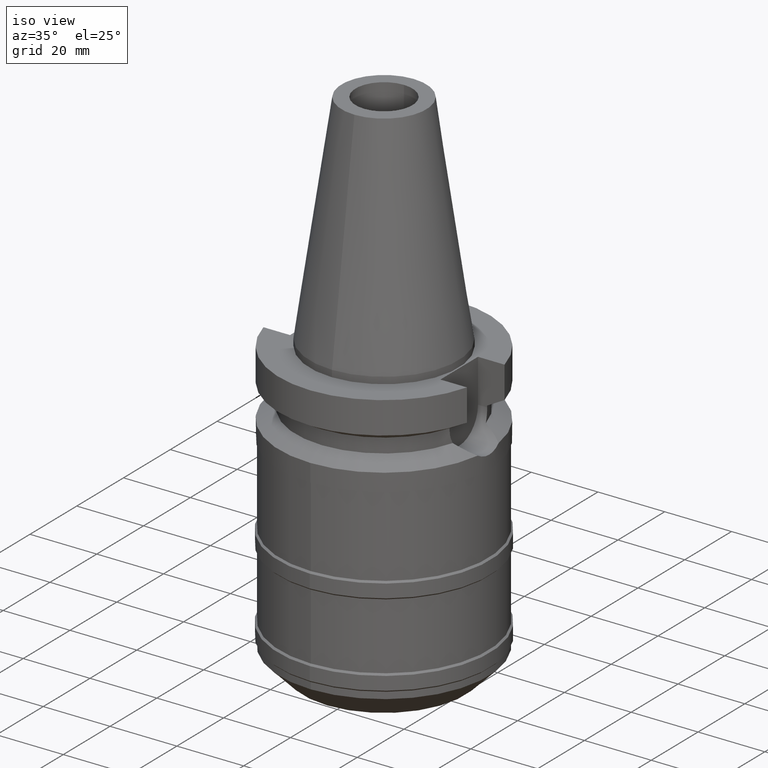
[diagram: clean part render]
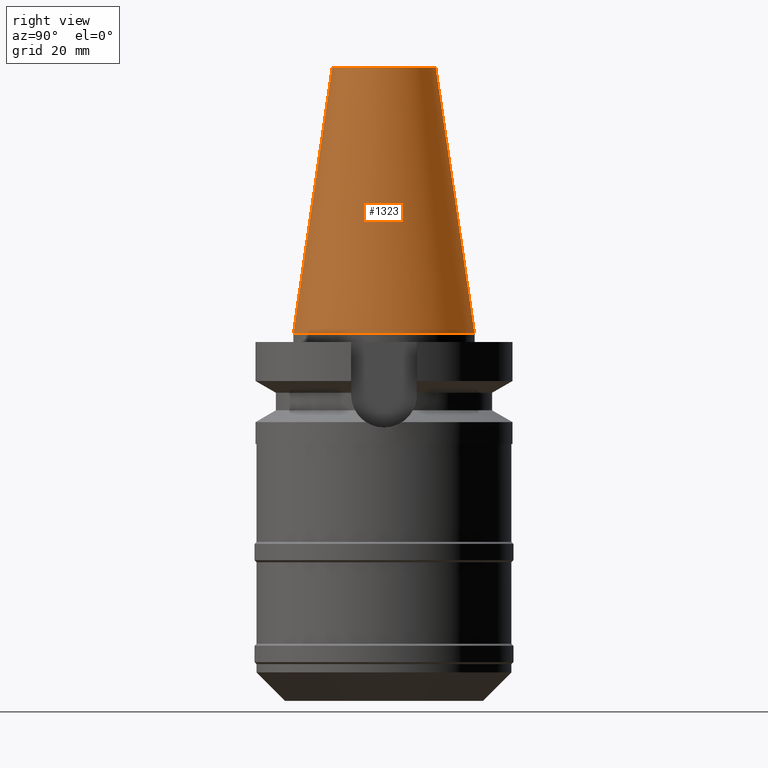
[diagram: tour spotlight — one face highlighted and labeled with its STEP entity id]
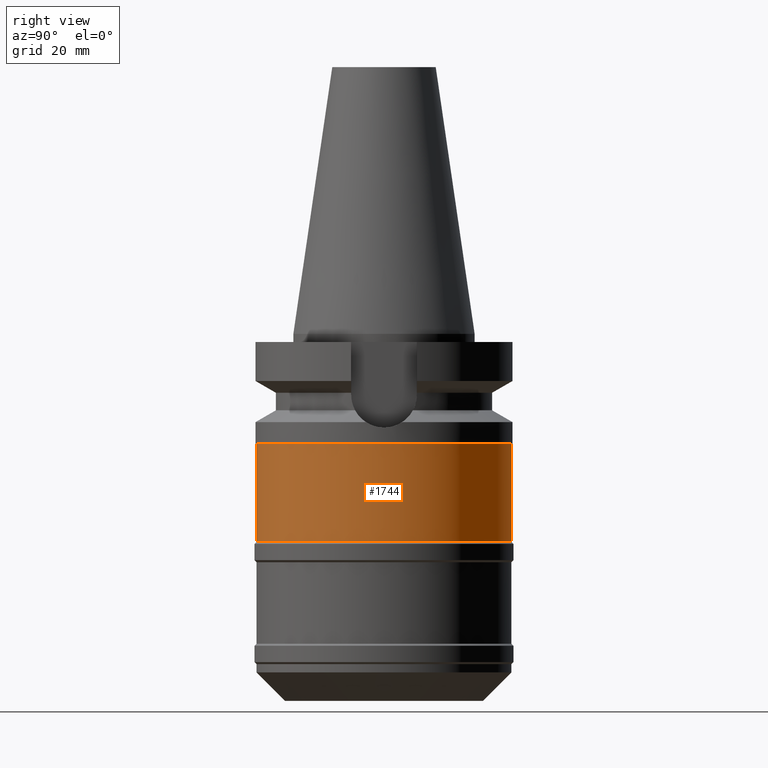
[diagram: tour spotlight — one face highlighted and labeled with its STEP entity id]
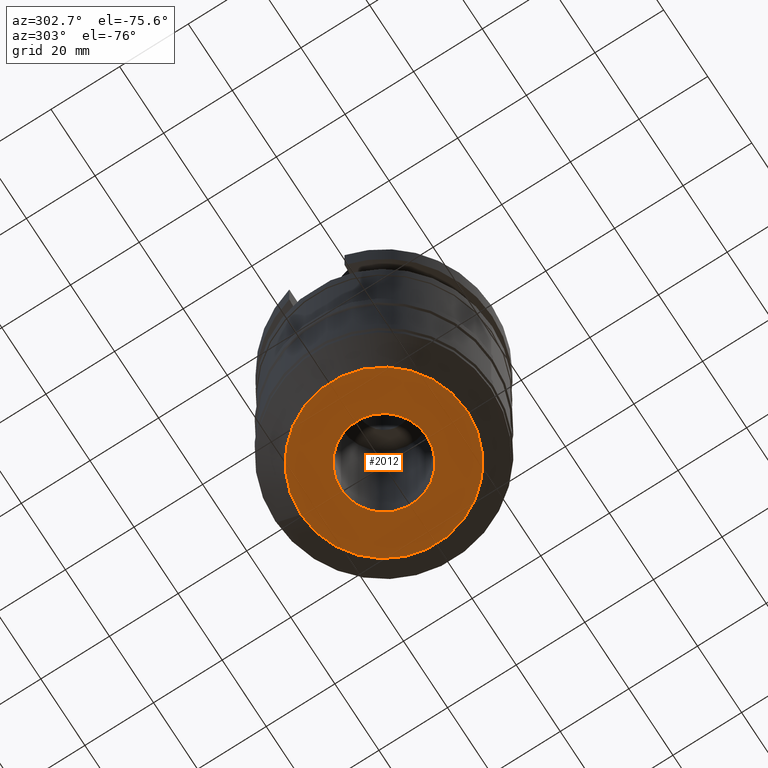
[diagram: tour spotlight — one face highlighted and labeled with its STEP entity id]
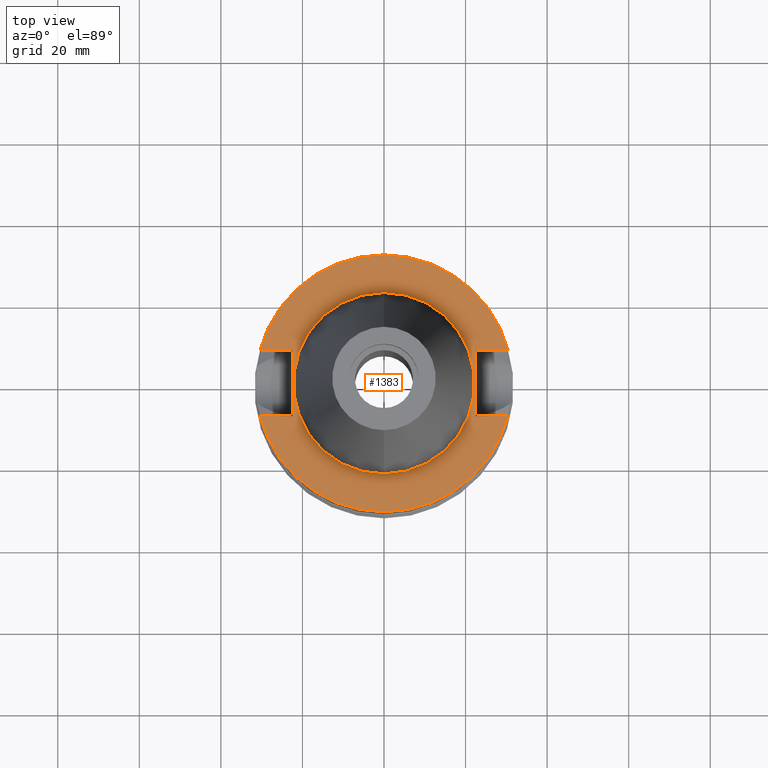
[diagram: tour spotlight — one face highlighted and labeled with its STEP entity id]
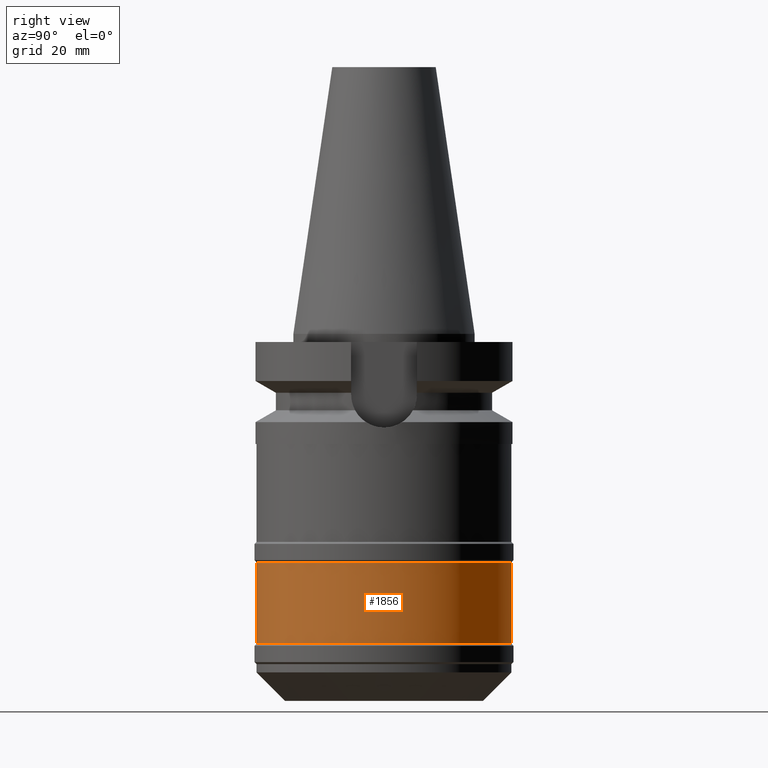
[diagram: tour spotlight — one face highlighted and labeled with its STEP entity id]
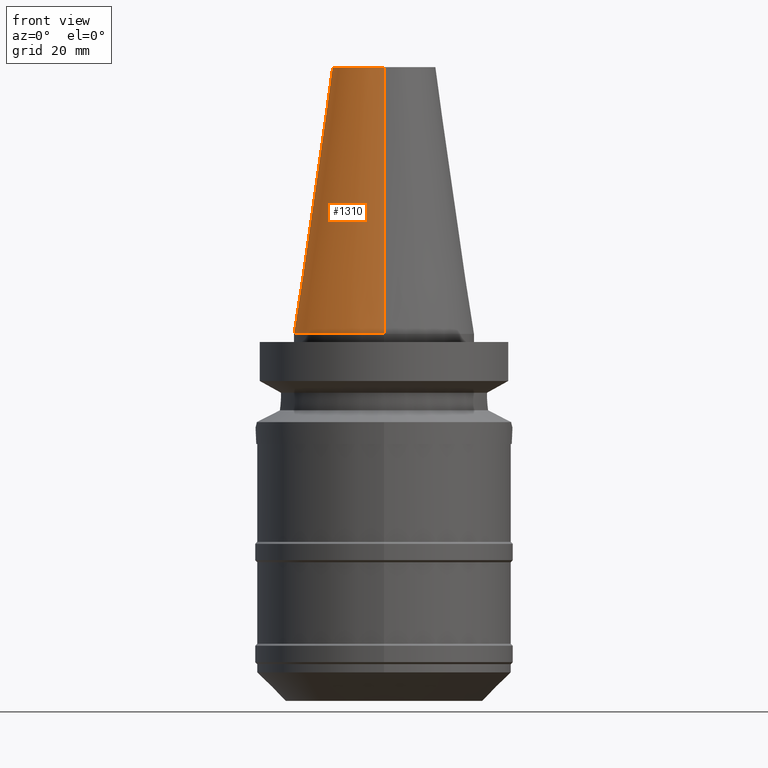
[diagram: tour spotlight — one face highlighted and labeled with its STEP entity id]
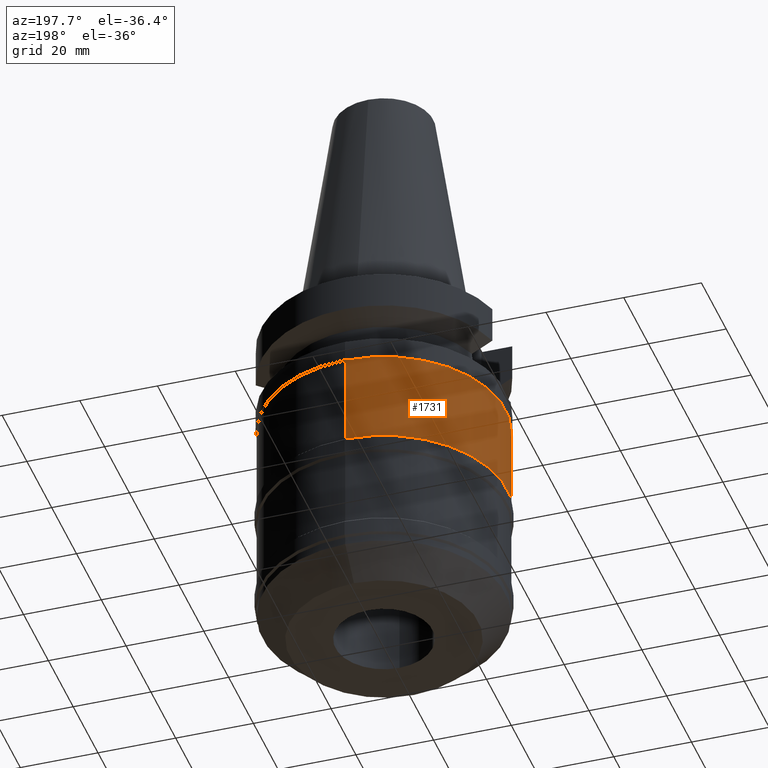
[diagram: tour spotlight — one face highlighted and labeled with its STEP entity id]
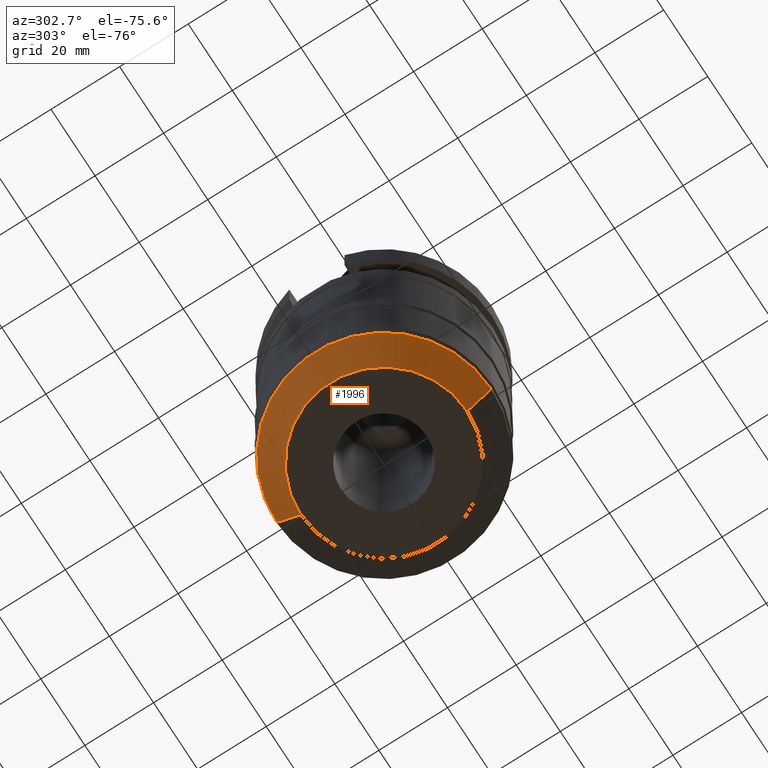
[diagram: tour spotlight — one face highlighted and labeled with its STEP entity id]
A machine part: a face-by-face anatomy tour. The part has 56 B-rep faces; the first image is the clean iso view, then the 8 largest visible faces are spotlighted one at a time (largest first), each with its STEP entity span.

Face 1 — right view, entity #1323. In plain terms, the highlighted conical surface has half-angle 8.297 deg.
Definition (entity closure, byte-faithful):
#26=CARTESIAN_POINT('',(0.E0,1.625106302469E-14,6.54E1));
#27=DIRECTION('',(0.E0,0.E0,-1.E0));
#28=DIRECTION('',(0.E0,1.E0,0.E0));
#29=AXIS2_PLACEMENT_3D('',#26,#27,#28);
#50=DIRECTION('',(0.E0,-1.443043893540E-1,-9.895333461856E-1));
#51=VECTOR('',#50,6.609175956738E1);
#52=CARTESIAN_POINT('',(0.E0,-1.268766899430E1,6.54E1));
#53=LINE('',#52,#51);
#65=DIRECTION('',(0.E0,1.443043893540E-1,-9.895333461856E-1));
#66=VECTOR('',#65,6.609175956738E1);
#67=CARTESIAN_POINT('',(0.E0,1.268766899430E1,6.54E1));
#68=LINE('',#67,#66);
#72=CARTESIAN_POINT('',(0.E0,1.625106302469E-14,2.842170943040E-14));
#73=DIRECTION('',(0.E0,0.E0,-1.E0));
#74=DIRECTION('',(0.E0,1.E0,0.E0));
#75=AXIS2_PLACEMENT_3D('',#72,#73,#74);
#1113=CARTESIAN_POINT('',(0.E0,-1.268766899430E1,6.54E1));
#1114=CARTESIAN_POINT('',(0.E0,1.268766899430E1,6.54E1));
#1115=VERTEX_POINT('',#1113);
#1116=VERTEX_POINT('',#1114);
#1266=CARTESIAN_POINT('',(0.E0,2.2225E1,6.394884621841E-14));
#1267=VERTEX_POINT('',#1266);
#1268=CARTESIAN_POINT('',(0.E0,-2.2225E1,6.394884621841E-14));
#1269=VERTEX_POINT('',#1268);
#1311=CARTESIAN_POINT('',(0.E0,1.625106302469E-14,3.27E1));
#1312=DIRECTION('',(0.E0,0.E0,-1.E0));
#1313=DIRECTION('',(0.E0,-1.E0,0.E0));
#1314=AXIS2_PLACEMENT_3D('',#1311,#1312,#1313);
#1315=CONICAL_SURFACE('',#1314,1.745633449715E1,8.297E0);
#1316=ORIENTED_EDGE('',*,*,#1301,.T.);
#1318=ORIENTED_EDGE('',*,*,#1317,.T.);
#1319=ORIENTED_EDGE('',*,*,#1304,.F.);
#1320=ORIENTED_EDGE('',*,*,#1285,.F.);
#1321=EDGE_LOOP('',(#1316,#1318,#1319,#1320));
#1322=FACE_OUTER_BOUND('',#1321,.F.);
#30=CIRCLE('',#29,1.268766899430E1);
#76=CIRCLE('',#75,2.2225E1);
#1285=EDGE_CURVE('',#1116,#1115,#30,.T.);
#1301=EDGE_CURVE('',#1116,#1267,#68,.T.);
#1304=EDGE_CURVE('',#1115,#1269,#53,.T.);
#1317=EDGE_CURVE('',#1267,#1269,#76,.T.);
#1323=ADVANCED_FACE('',(#1322),#1315,.T.);

Face 2 — right view, entity #1744. In plain terms, the highlighted cylindrical surface (partial cylindrical patch) has radius 31.25 mm, axis along (0, 0, -1).
Definition (entity closure, byte-faithful):
#653=CARTESIAN_POINT('',(0.E0,2.120720862083E-14,-2.7E1));
#654=DIRECTION('',(0.E0,0.E0,-1.E0));
#655=DIRECTION('',(0.E0,1.E0,0.E0));
#656=AXIS2_PLACEMENT_3D('',#653,#654,#655);
#661=DIRECTION('',(0.E0,0.E0,-1.E0));
#662=VECTOR('',#661,2.4E1);
#663=CARTESIAN_POINT('',(0.E0,-3.125E1,-2.7E1));
#664=LINE('',#663,#662);
#668=DIRECTION('',(0.E0,0.E0,-1.E0));
#669=VECTOR('',#668,2.4E1);
#670=CARTESIAN_POINT('',(0.E0,3.125E1,-2.7E1));
#671=LINE('',#670,#669);
#690=CARTESIAN_POINT('',(0.E0,0.E0,-5.1E1));
#691=DIRECTION('',(0.E0,0.E0,1.E0));
#692=DIRECTION('',(0.E0,-1.E0,0.E0));
#693=AXIS2_PLACEMENT_3D('',#690,#691,#692);
#1181=CARTESIAN_POINT('',(0.E0,3.125E1,-5.1E1));
#1182=VERTEX_POINT('',#1181);
#1183=CARTESIAN_POINT('',(0.E0,-3.125E1,-5.1E1));
#1184=VERTEX_POINT('',#1183);
#1185=CARTESIAN_POINT('',(0.E0,3.125E1,-2.7E1));
#1186=VERTEX_POINT('',#1185);
#1187=CARTESIAN_POINT('',(0.E0,-3.125E1,-2.7E1));
#1188=VERTEX_POINT('',#1187);
#1732=CARTESIAN_POINT('',(0.E0,2.120720862083E-14,7.317E1));
#1733=DIRECTION('',(0.E0,0.E0,-1.E0));
#1734=DIRECTION('',(0.E0,-1.E0,0.E0));
#1735=AXIS2_PLACEMENT_3D('',#1732,#1733,#1734);
#1736=CYLINDRICAL_SURFACE('',#1735,3.125E1);
#1737=ORIENTED_EDGE('',*,*,#1722,.T.);
#1739=ORIENTED_EDGE('',*,*,#1738,.F.);
#1740=ORIENTED_EDGE('',*,*,#1725,.F.);
#1741=ORIENTED_EDGE('',*,*,#1712,.F.);
#1742=EDGE_LOOP('',(#1737,#1739,#1740,#1741));
#1743=FACE_OUTER_BOUND('',#1742,.F.);
#657=CIRCLE('',#656,3.125E1);
#694=CIRCLE('',#693,3.125E1);
#1712=EDGE_CURVE('',#1186,#1188,#657,.T.);
#1722=EDGE_CURVE('',#1186,#1182,#671,.T.);
#1725=EDGE_CURVE('',#1188,#1184,#664,.T.);
#1738=EDGE_CURVE('',#1184,#1182,#694,.T.);
#1744=ADVANCED_FACE('',(#1743),#1736,.T.);

Face 3 — auxiliary view, entity #2012. In plain terms, the highlighted planar face has unit normal (0, 0, -1).
Definition (entity closure, byte-faithful):
#945=CARTESIAN_POINT('',(0.E0,0.E0,-9.E1));
#946=DIRECTION('',(0.E0,0.E0,1.E0));
#947=DIRECTION('',(0.E0,-1.E0,0.E0));
#948=AXIS2_PLACEMENT_3D('',#945,#946,#947);
#953=CARTESIAN_POINT('',(0.E0,0.E0,-9.E1));
#954=DIRECTION('',(0.E0,0.E0,1.E0));
#955=DIRECTION('',(0.E0,1.E0,0.E0));
#956=AXIS2_PLACEMENT_3D('',#953,#954,#955);
#961=CARTESIAN_POINT('',(0.E0,2.120720862083E-14,-9.E1));
#962=DIRECTION('',(0.E0,0.E0,-1.E0));
#963=DIRECTION('',(0.E0,-1.E0,0.E0));
#964=AXIS2_PLACEMENT_3D('',#961,#962,#963);
#969=CARTESIAN_POINT('',(0.E0,2.120720862083E-14,-9.E1));
#970=DIRECTION('',(0.E0,0.E0,-1.E0));
#971=DIRECTION('',(0.E0,1.E0,0.E0));
#972=AXIS2_PLACEMENT_3D('',#969,#970,#971);
#1141=CARTESIAN_POINT('',(0.E0,1.25E1,-9.E1));
#1142=VERTEX_POINT('',#1141);
#1143=CARTESIAN_POINT('',(0.E0,-1.25E1,-9.E1));
#1144=VERTEX_POINT('',#1143);
#1145=CARTESIAN_POINT('',(0.E0,-2.425E1,-9.E1));
#1146=CARTESIAN_POINT('',(0.E0,2.425E1,-9.E1));
#1147=VERTEX_POINT('',#1145);
#1148=VERTEX_POINT('',#1146);
#1997=CARTESIAN_POINT('',(0.E0,0.E0,-9.E1));
#1998=DIRECTION('',(0.E0,0.E0,-1.E0));
#1999=DIRECTION('',(0.E0,-1.E0,0.E0));
#2000=AXIS2_PLACEMENT_3D('',#1997,#1998,#1999);
#2001=PLANE('',#2000);
#2002=ORIENTED_EDGE('',*,*,#1976,.T.);
#2003=ORIENTED_EDGE('',*,*,#1992,.T.);
#2004=EDGE_LOOP('',(#2002,#2003));
#2005=FACE_OUTER_BOUND('',#2004,.F.);
#2007=ORIENTED_EDGE('',*,*,#2006,.T.);
#2009=ORIENTED_EDGE('',*,*,#2008,.T.);
#2010=EDGE_LOOP('',(#2007,#2009));
#2011=FACE_BOUND('',#2010,.F.);
#949=CIRCLE('',#948,2.425E1);
#957=CIRCLE('',#956,2.425E1);
#965=CIRCLE('',#964,1.25E1);
#973=CIRCLE('',#972,1.25E1);
#1976=EDGE_CURVE('',#1147,#1148,#949,.T.);
#1992=EDGE_CURVE('',#1148,#1147,#957,.T.);
#2006=EDGE_CURVE('',#1144,#1142,#965,.T.);
#2008=EDGE_CURVE('',#1142,#1144,#973,.T.);
#2012=ADVANCED_FACE('',(#2005,#2011),#2001,.T.);

Face 4 — top view, entity #1383. In plain terms, the highlighted planar face has unit normal (0, 0, -1).
Definition (entity closure, byte-faithful):
#94=DIRECTION('',(0.E0,1.E0,0.E0));
#95=VECTOR('',#94,1.61E1);
#96=CARTESIAN_POINT('',(-2.25E1,-8.05E0,-2.E0));
#97=LINE('',#96,#95);
#101=DIRECTION('',(-1.E0,-3.550916904668E-14,0.E0));
#102=VECTOR('',#101,7.954022722788E0);
#103=CARTESIAN_POINT('',(-2.25E1,8.05E0,-2.E0));
#104=LINE('',#103,#102);
#108=CARTESIAN_POINT('',(0.E0,2.120720862083E-14,-2.E0));
#109=DIRECTION('',(0.E0,0.E0,-1.E0));
#110=DIRECTION('',(-9.667943721520E-1,2.555555555556E-1,0.E0));
#111=AXIS2_PLACEMENT_3D('',#108,#109,#110);
#116=CARTESIAN_POINT('',(0.E0,2.120720862083E-14,-2.E0));
#117=DIRECTION('',(0.E0,0.E0,-1.E0));
#118=DIRECTION('',(0.E0,1.E0,0.E0));
#119=AXIS2_PLACEMENT_3D('',#116,#117,#118);
#124=DIRECTION('',(0.E0,-1.E0,0.E0));
#125=VECTOR('',#124,1.61E1);
#126=CARTESIAN_POINT('',(2.25E1,8.05E0,-2.E0));
#127=LINE('',#126,#125);
#131=DIRECTION('',(1.E0,3.573249715390E-14,0.E0));
#132=VECTOR('',#131,7.954022722788E0);
#133=CARTESIAN_POINT('',(2.25E1,-8.05E0,-2.E0));
#134=LINE('',#133,#132);
#138=CARTESIAN_POINT('',(0.E0,2.120720862083E-14,-2.E0));
#139=DIRECTION('',(0.E0,0.E0,-1.E0));
#140=DIRECTION('',(9.667943721520E-1,-2.555555555556E-1,0.E0));
#141=AXIS2_PLACEMENT_3D('',#138,#139,#140);
#146=CARTESIAN_POINT('',(0.E0,2.120720862083E-14,-2.E0));
#147=DIRECTION('',(0.E0,0.E0,-1.E0));
#148=DIRECTION('',(0.E0,-1.E0,0.E0));
#149=AXIS2_PLACEMENT_3D('',#146,#147,#148);
#154=CARTESIAN_POINT('',(0.E0,2.120720862083E-14,-2.E0));
#155=DIRECTION('',(0.E0,0.E0,1.E0));
#156=DIRECTION('',(0.E0,-1.E0,0.E0));
#157=AXIS2_PLACEMENT_3D('',#154,#155,#156);
#162=CARTESIAN_POINT('',(0.E0,2.120720862083E-14,-2.E0));
#163=DIRECTION('',(0.E0,0.E0,1.E0));
#164=DIRECTION('',(0.E0,1.E0,0.E0));
#165=AXIS2_PLACEMENT_3D('',#162,#163,#164);
#200=DIRECTION('',(-1.E0,3.550916904668E-14,0.E0));
#201=VECTOR('',#200,7.954022722788E0);
#202=CARTESIAN_POINT('',(-2.25E1,-8.05E0,-2.E0));
#203=LINE('',#202,#201);
#337=DIRECTION('',(1.E0,-3.506251283226E-14,0.E0));
#338=VECTOR('',#337,7.954022722788E0);
#339=CARTESIAN_POINT('',(2.25E1,8.05E0,-2.E0));
#340=LINE('',#339,#338);
#1240=CARTESIAN_POINT('',(-2.25E1,-8.05E0,-2.E0));
#1241=VERTEX_POINT('',#1240);
#1242=CARTESIAN_POINT('',(-3.045402272279E1,-8.05E0,-2.E0));
#1243=VERTEX_POINT('',#1242);
#1246=CARTESIAN_POINT('',(-2.25E1,8.05E0,-2.E0));
#1247=VERTEX_POINT('',#1246);
#1248=CARTESIAN_POINT('',(-3.045402272279E1,8.05E0,-2.E0));
#1249=VERTEX_POINT('',#1248);
#1250=CARTESIAN_POINT('',(-3.046064939756E-14,3.15E1,-2.E0));
#1251=CARTESIAN_POINT('',(3.045402272279E1,8.05E0,-2.E0));
#1252=VERTEX_POINT('',#1250);
#1253=VERTEX_POINT('',#1251);
#1254=CARTESIAN_POINT('',(2.25E1,8.05E0,-2.E0));
#1255=VERTEX_POINT('',#1254);
#1256=CARTESIAN_POINT('',(2.25E1,-8.05E0,-2.E0));
#1257=VERTEX_POINT('',#1256);
#1258=CARTESIAN_POINT('',(3.045402272279E1,-8.05E0,-2.E0));
#1259=VERTEX_POINT('',#1258);
#1260=CARTESIAN_POINT('',(3.046064939756E-14,-3.15E1,-2.E0));
#1261=VERTEX_POINT('',#1260);
#1262=CARTESIAN_POINT('',(0.E0,-2.2225E1,-2.E0));
#1263=CARTESIAN_POINT('',(0.E0,2.2225E1,-2.E0));
#1264=VERTEX_POINT('',#1262);
#1265=VERTEX_POINT('',#1263);
#1352=CARTESIAN_POINT('',(0.E0,1.200153863164E-14,-2.E0));
#1353=DIRECTION('',(0.E0,0.E0,-1.E0));
#1354=DIRECTION('',(0.E0,-1.E0,0.E0));
#1355=AXIS2_PLACEMENT_3D('',#1352,#1353,#1354);
#1356=PLANE('',#1355);
#1358=ORIENTED_EDGE('',*,*,#1357,.T.);
#1360=ORIENTED_EDGE('',*,*,#1359,.T.);
#1362=ORIENTED_EDGE('',*,*,#1361,.T.);
#1364=ORIENTED_EDGE('',*,*,#1363,.T.);
#1366=ORIENTED_EDGE('',*,*,#1365,.F.);
#1368=ORIENTED_EDGE('',*,*,#1367,.T.);
#1370=ORIENTED_EDGE('',*,*,#1369,.T.);
#1372=ORIENTED_EDGE('',*,*,#1371,.T.);
#1374=ORIENTED_EDGE('',*,*,#1373,.T.);
#1376=ORIENTED_EDGE('',*,*,#1375,.F.);
#1377=EDGE_LOOP('',(#1358,#1360,#1362,#1364,#1366,#1368,#1370,#1372,#1374,
#1376));
#1378=FACE_OUTER_BOUND('',#1377,.F.);
#1379=ORIENTED_EDGE('',*,*,#1331,.T.);
#1380=ORIENTED_EDGE('',*,*,#1347,.T.);
#1381=EDGE_LOOP('',(#1379,#1380));
#1382=FACE_BOUND('',#1381,.F.);
#112=CIRCLE('',#111,3.15E1);
#120=CIRCLE('',#119,3.15E1);
#142=CIRCLE('',#141,3.15E1);
#150=CIRCLE('',#149,3.15E1);
#158=CIRCLE('',#157,2.2225E1);
#166=CIRCLE('',#165,2.2225E1);
#1331=EDGE_CURVE('',#1264,#1265,#158,.T.);
#1347=EDGE_CURVE('',#1265,#1264,#166,.T.);
#1357=EDGE_CURVE('',#1241,#1247,#97,.T.);
#1359=EDGE_CURVE('',#1247,#1249,#104,.T.);
#1361=EDGE_CURVE('',#1249,#1252,#112,.T.);
#1363=EDGE_CURVE('',#1252,#1253,#120,.T.);
#1365=EDGE_CURVE('',#1255,#1253,#340,.T.);
#1367=EDGE_CURVE('',#1255,#1257,#127,.T.);
#1369=EDGE_CURVE('',#1257,#1259,#134,.T.);
#1371=EDGE_CURVE('',#1259,#1261,#142,.T.);
#1373=EDGE_CURVE('',#1261,#1243,#150,.T.);
#1375=EDGE_CURVE('',#1241,#1243,#203,.T.);
#1383=ADVANCED_FACE('',(#1378,#1382),#1356,.F.);

Face 5 — right view, entity #1856. In plain terms, the highlighted cylindrical surface (partial cylindrical patch) has radius 31.25 mm, axis along (0, 0, -1).
Definition (entity closure, byte-faithful):
#742=CARTESIAN_POINT('',(0.E0,0.E0,-5.6E1));
#743=DIRECTION('',(0.E0,0.E0,-1.E0));
#744=DIRECTION('',(0.E0,1.E0,0.E0));
#745=AXIS2_PLACEMENT_3D('',#742,#743,#744);
#781=DIRECTION('',(0.E0,0.E0,-1.E0));
#782=VECTOR('',#781,2.E1);
#783=CARTESIAN_POINT('',(0.E0,-3.125E1,-5.6E1));
#784=LINE('',#783,#782);
#788=DIRECTION('',(0.E0,0.E0,-1.E0));
#789=VECTOR('',#788,2.E1);
#790=CARTESIAN_POINT('',(0.E0,3.125E1,-5.6E1));
#791=LINE('',#790,#789);
#810=CARTESIAN_POINT('',(0.E0,0.E0,-7.6E1));
#811=DIRECTION('',(0.E0,0.E0,1.E0));
#812=DIRECTION('',(0.E0,-1.E0,0.E0));
#813=AXIS2_PLACEMENT_3D('',#810,#811,#812);
#1165=CARTESIAN_POINT('',(0.E0,3.125E1,-7.6E1));
#1166=VERTEX_POINT('',#1165);
#1167=CARTESIAN_POINT('',(0.E0,-3.125E1,-7.6E1));
#1168=VERTEX_POINT('',#1167);
#1169=CARTESIAN_POINT('',(0.E0,3.125E1,-5.6E1));
#1170=VERTEX_POINT('',#1169);
#1171=CARTESIAN_POINT('',(0.E0,-3.125E1,-5.6E1));
#1172=VERTEX_POINT('',#1171);
#1844=CARTESIAN_POINT('',(0.E0,2.120720862083E-14,7.317E1));
#1845=DIRECTION('',(0.E0,0.E0,-1.E0));
#1846=DIRECTION('',(0.E0,-1.E0,0.E0));
#1847=AXIS2_PLACEMENT_3D('',#1844,#1845,#1846);
#1848=CYLINDRICAL_SURFACE('',#1847,3.125E1);
#1849=ORIENTED_EDGE('',*,*,#1834,.T.);
#1851=ORIENTED_EDGE('',*,*,#1850,.F.);
#1852=ORIENTED_EDGE('',*,*,#1837,.F.);
#1853=ORIENTED_EDGE('',*,*,#1808,.F.);
#1854=EDGE_LOOP('',(#1849,#1851,#1852,#1853));
#1855=FACE_OUTER_BOUND('',#1854,.F.);
#746=CIRCLE('',#745,3.125E1);
#814=CIRCLE('',#813,3.125E1);
#1808=EDGE_CURVE('',#1170,#1172,#746,.T.);
#1834=EDGE_CURVE('',#1170,#1166,#791,.T.);
#1837=EDGE_CURVE('',#1172,#1168,#784,.T.);
#1850=EDGE_CURVE('',#1168,#1166,#814,.T.);
#1856=ADVANCED_FACE('',(#1855),#1848,.T.);

Face 6 — front view, entity #1310. In plain terms, the highlighted conical surface has half-angle 8.297 deg.
Definition (entity closure, byte-faithful):
#17=CARTESIAN_POINT('',(0.E0,1.625106302469E-14,6.54E1));
#18=DIRECTION('',(0.E0,0.E0,-1.E0));
#19=DIRECTION('',(0.E0,-1.E0,0.E0));
#20=AXIS2_PLACEMENT_3D('',#17,#18,#19);
#50=DIRECTION('',(0.E0,-1.443043893540E-1,-9.895333461856E-1));
#51=VECTOR('',#50,6.609175956738E1);
#52=CARTESIAN_POINT('',(0.E0,-1.268766899430E1,6.54E1));
#53=LINE('',#52,#51);
#57=CARTESIAN_POINT('',(0.E0,1.625106302469E-14,2.842170943040E-14));
#58=DIRECTION('',(0.E0,0.E0,-1.E0));
#59=DIRECTION('',(0.E0,-1.E0,0.E0));
#60=AXIS2_PLACEMENT_3D('',#57,#58,#59);
#65=DIRECTION('',(0.E0,1.443043893540E-1,-9.895333461856E-1));
#66=VECTOR('',#65,6.609175956738E1);
#67=CARTESIAN_POINT('',(0.E0,1.268766899430E1,6.54E1));
#68=LINE('',#67,#66);
#1113=CARTESIAN_POINT('',(0.E0,-1.268766899430E1,6.54E1));
#1114=CARTESIAN_POINT('',(0.E0,1.268766899430E1,6.54E1));
#1115=VERTEX_POINT('',#1113);
#1116=VERTEX_POINT('',#1114);
#1266=CARTESIAN_POINT('',(0.E0,2.2225E1,6.394884621841E-14));
#1267=VERTEX_POINT('',#1266);
#1268=CARTESIAN_POINT('',(0.E0,-2.2225E1,6.394884621841E-14));
#1269=VERTEX_POINT('',#1268);
#1296=CARTESIAN_POINT('',(0.E0,1.625106302469E-14,3.27E1));
#1297=DIRECTION('',(0.E0,0.E0,-1.E0));
#1298=DIRECTION('',(0.E0,-1.E0,0.E0));
#1299=AXIS2_PLACEMENT_3D('',#1296,#1297,#1298);
#1300=CONICAL_SURFACE('',#1299,1.745633449715E1,8.297E0);
#1302=ORIENTED_EDGE('',*,*,#1301,.F.);
#1303=ORIENTED_EDGE('',*,*,#1283,.F.);
#1305=ORIENTED_EDGE('',*,*,#1304,.T.);
#1307=ORIENTED_EDGE('',*,*,#1306,.T.);
#1308=EDGE_LOOP('',(#1302,#1303,#1305,#1307));
#1309=FACE_OUTER_BOUND('',#1308,.F.);
#21=CIRCLE('',#20,1.268766899430E1);
#61=CIRCLE('',#60,2.2225E1);
#1283=EDGE_CURVE('',#1115,#1116,#21,.T.);
#1301=EDGE_CURVE('',#1116,#1267,#68,.T.);
#1304=EDGE_CURVE('',#1115,#1269,#53,.T.);
#1306=EDGE_CURVE('',#1269,#1267,#61,.T.);
#1310=ADVANCED_FACE('',(#1309),#1300,.T.);

Face 7 — auxiliary view, entity #1731. In plain terms, the highlighted cylindrical surface (partial cylindrical patch) has radius 31.25 mm, axis along (0, 0, -1).
Definition (entity closure, byte-faithful):
#645=CARTESIAN_POINT('',(0.E0,2.120720862083E-14,-2.7E1));
#646=DIRECTION('',(0.E0,0.E0,-1.E0));
#647=DIRECTION('',(0.E0,-1.E0,0.E0));
#648=AXIS2_PLACEMENT_3D('',#645,#646,#647);
#661=DIRECTION('',(0.E0,0.E0,-1.E0));
#662=VECTOR('',#661,2.4E1);
#663=CARTESIAN_POINT('',(0.E0,-3.125E1,-2.7E1));
#664=LINE('',#663,#662);
#668=DIRECTION('',(0.E0,0.E0,-1.E0));
#669=VECTOR('',#668,2.4E1);
#670=CARTESIAN_POINT('',(0.E0,3.125E1,-2.7E1));
#671=LINE('',#670,#669);
#698=CARTESIAN_POINT('',(0.E0,0.E0,-5.1E1));
#699=DIRECTION('',(0.E0,0.E0,1.E0));
#700=DIRECTION('',(0.E0,1.E0,0.E0));
#701=AXIS2_PLACEMENT_3D('',#698,#699,#700);
#1181=CARTESIAN_POINT('',(0.E0,3.125E1,-5.1E1));
#1182=VERTEX_POINT('',#1181);
#1183=CARTESIAN_POINT('',(0.E0,-3.125E1,-5.1E1));
#1184=VERTEX_POINT('',#1183);
#1185=CARTESIAN_POINT('',(0.E0,3.125E1,-2.7E1));
#1186=VERTEX_POINT('',#1185);
#1187=CARTESIAN_POINT('',(0.E0,-3.125E1,-2.7E1));
#1188=VERTEX_POINT('',#1187);
#1717=CARTESIAN_POINT('',(0.E0,2.120720862083E-14,7.317E1));
#1718=DIRECTION('',(0.E0,0.E0,-1.E0));
#1719=DIRECTION('',(0.E0,-1.E0,0.E0));
#1720=AXIS2_PLACEMENT_3D('',#1717,#1718,#1719);
#1721=CYLINDRICAL_SURFACE('',#1720,3.125E1);
#1723=ORIENTED_EDGE('',*,*,#1722,.F.);
#1724=ORIENTED_EDGE('',*,*,#1710,.F.);
#1726=ORIENTED_EDGE('',*,*,#1725,.T.);
#1728=ORIENTED_EDGE('',*,*,#1727,.F.);
#1729=EDGE_LOOP('',(#1723,#1724,#1726,#1728));
#1730=FACE_OUTER_BOUND('',#1729,.F.);
#649=CIRCLE('',#648,3.125E1);
#702=CIRCLE('',#701,3.125E1);
#1710=EDGE_CURVE('',#1188,#1186,#649,.T.);
#1722=EDGE_CURVE('',#1186,#1182,#671,.T.);
#1725=EDGE_CURVE('',#1188,#1184,#664,.T.);
#1727=EDGE_CURVE('',#1182,#1184,#702,.T.);
#1731=ADVANCED_FACE('',(#1730),#1721,.T.);

Face 8 — auxiliary view, entity #1996. In plain terms, the highlighted conical surface has half-angle 45 deg.
Definition (entity closure, byte-faithful):
#915=DIRECTION('',(0.E0,-7.071067811865E-1,-7.071067811865E-1));
#916=VECTOR('',#915,9.899494936612E0);
#917=CARTESIAN_POINT('',(0.E0,3.125E1,-8.3E1));
#918=LINE('',#917,#916);
#930=CARTESIAN_POINT('',(0.E0,0.E0,-8.3E1));
#931=DIRECTION('',(0.E0,0.E0,1.E0));
#932=DIRECTION('',(0.E0,1.E0,0.E0));
#933=AXIS2_PLACEMENT_3D('',#930,#931,#932);
#938=DIRECTION('',(0.E0,7.071067811865E-1,-7.071067811865E-1));
#939=VECTOR('',#938,9.899494936612E0);
#940=CARTESIAN_POINT('',(0.E0,-3.125E1,-8.3E1));
#941=LINE('',#940,#939);
#953=CARTESIAN_POINT('',(0.E0,0.E0,-9.E1));
#954=DIRECTION('',(0.E0,0.E0,1.E0));
#955=DIRECTION('',(0.E0,1.E0,0.E0));
#956=AXIS2_PLACEMENT_3D('',#953,#954,#955);
#1145=CARTESIAN_POINT('',(0.E0,-2.425E1,-9.E1));
#1146=CARTESIAN_POINT('',(0.E0,2.425E1,-9.E1));
#1147=VERTEX_POINT('',#1145);
#1148=VERTEX_POINT('',#1146);
#1149=CARTESIAN_POINT('',(0.E0,3.125E1,-8.3E1));
#1150=VERTEX_POINT('',#1149);
#1151=CARTESIAN_POINT('',(0.E0,-3.125E1,-8.3E1));
#1152=VERTEX_POINT('',#1151);
#1984=CARTESIAN_POINT('',(0.E0,0.E0,-8.65E1));
#1985=DIRECTION('',(0.E0,0.E0,1.E0));
#1986=DIRECTION('',(0.E0,1.E0,0.E0));
#1987=AXIS2_PLACEMENT_3D('',#1984,#1985,#1986);
#1988=CONICAL_SURFACE('',#1987,2.775E1,4.5E1);
#1989=ORIENTED_EDGE('',*,*,#1974,.F.);
#1990=ORIENTED_EDGE('',*,*,#1951,.T.);
#1991=ORIENTED_EDGE('',*,*,#1978,.T.);
#1993=ORIENTED_EDGE('',*,*,#1992,.F.);
#1994=EDGE_LOOP('',(#1989,#1990,#1991,#1993));
#1995=FACE_OUTER_BOUND('',#1994,.F.);
#934=CIRCLE('',#933,3.125E1);
#957=CIRCLE('',#956,2.425E1);
#1951=EDGE_CURVE('',#1150,#1152,#934,.T.);
#1974=EDGE_CURVE('',#1150,#1148,#918,.T.);
#1978=EDGE_CURVE('',#1152,#1147,#941,.T.);
#1992=EDGE_CURVE('',#1148,#1147,#957,.T.);
#1996=ADVANCED_FACE('',(#1995),#1988,.T.);